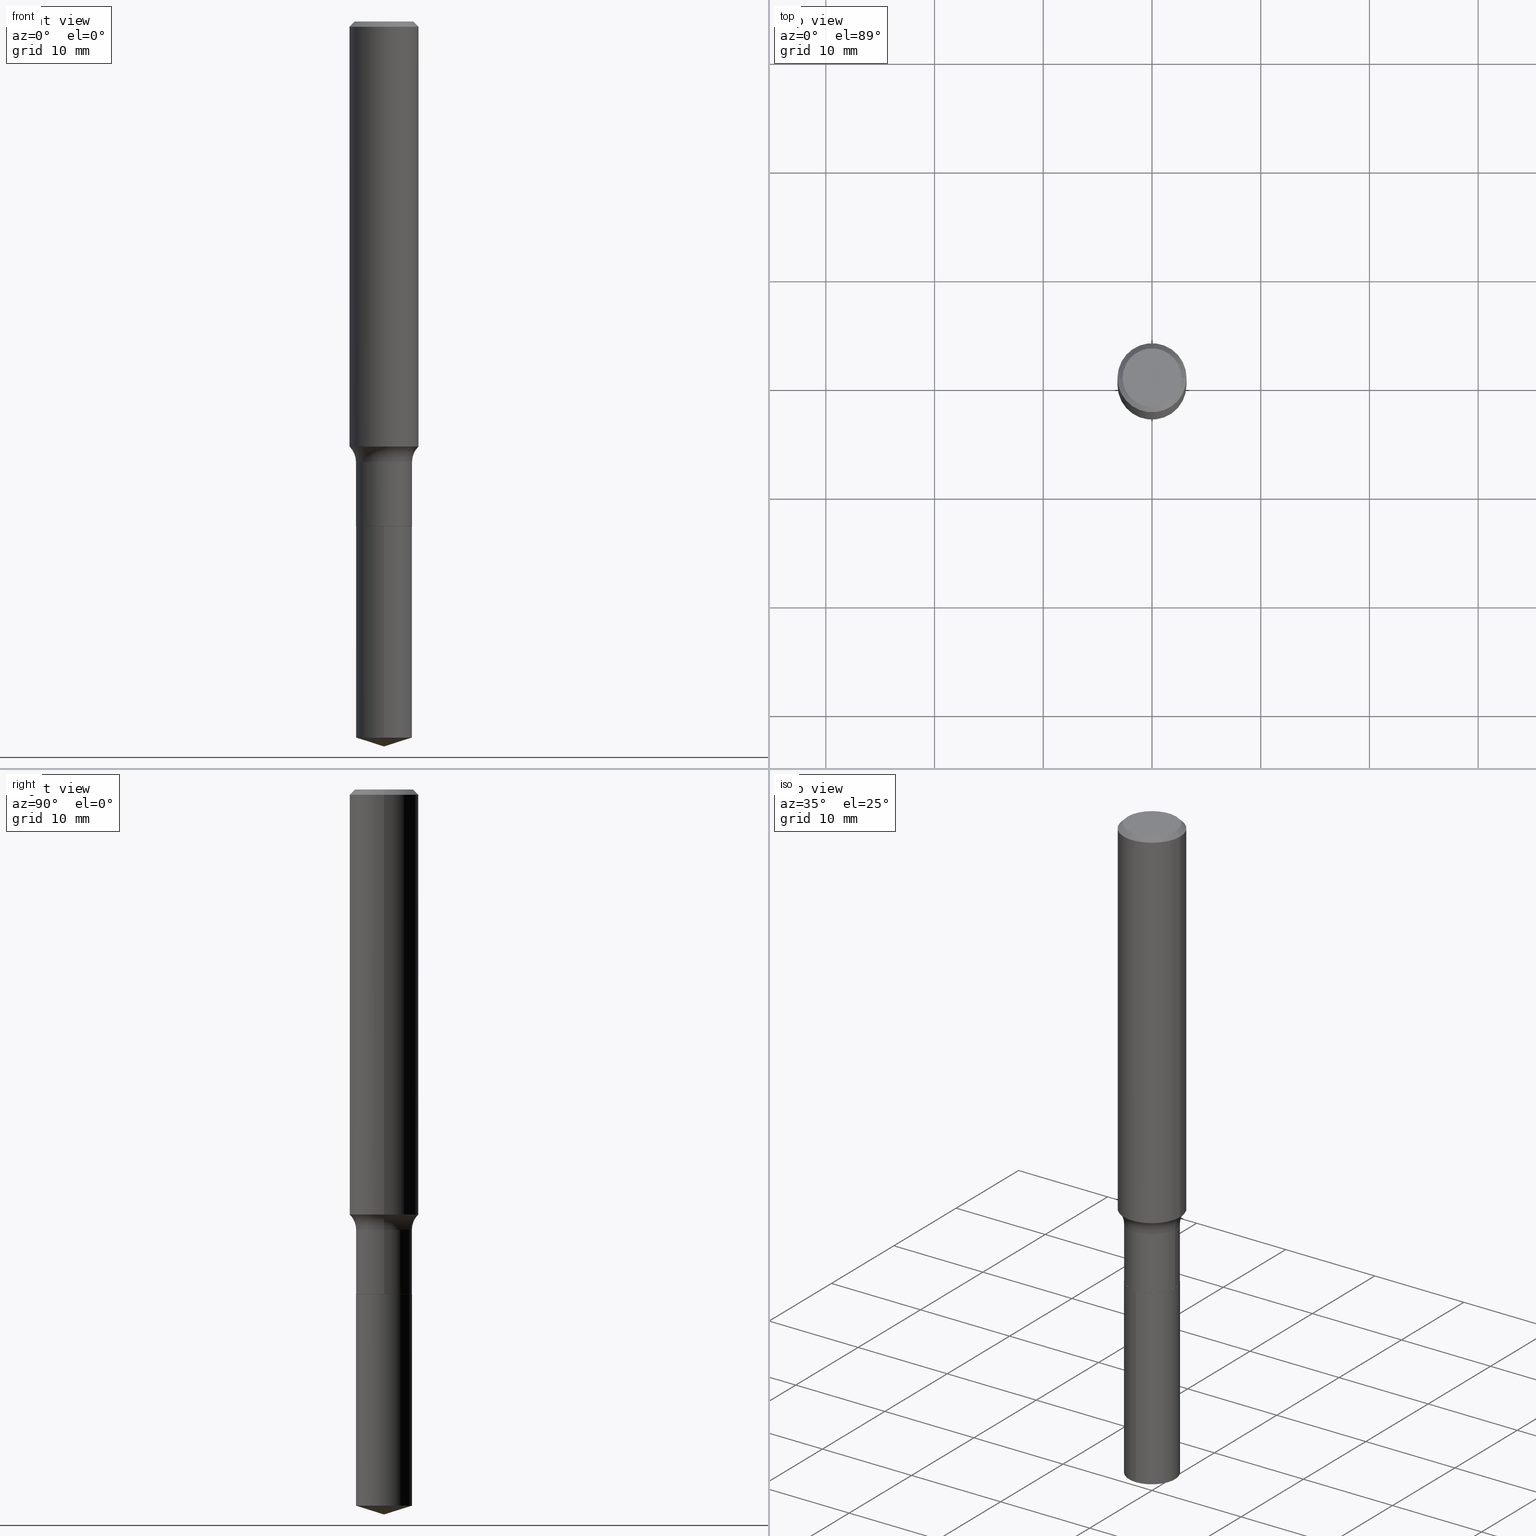
[diagram: canonical four-view strip — front | top / right | iso, engineering-drawing reading convention]
A machine part, canonical four-view strip (front | top / right | iso — engineering-drawing reading convention). The complete STEP part file that produces these views, byte-faithful:
ISO-10303-21;
HEADER;
FILE_DESCRIPTION (( 'STEP AP203' ),
    '1' );
FILE_NAME ('51339.STEP',
    '2024-04-19T12:49:15',
    ( '' ),
    ( '' ),
    'SwSTEP 2.0',
    'SolidWorks 2023',
    '' );
FILE_SCHEMA (( 'CONFIG_CONTROL_DESIGN' ));
ENDSEC;

DATA;
#1 = DIRECTION ( 'NONE',  ( 1.000000000000000000, -6.982962677686266711E-15, 4.876176775795935232E-29 ) ) ;
#2 = MANIFOLD_SOLID_BREP ( 'Body-Move/Copy2[1]', #132 ) ;
#3 = ADVANCED_FACE ( 'NONE', ( #295 ), #405, .F. ) ;
#4 = DATE_AND_TIME ( #349, #327 ) ;
#5 = AXIS2_PLACEMENT_3D ( 'NONE', #257, #165, #61 ) ;
#6 = CARTESIAN_POINT ( 'NONE',  ( 4.470561524587048986E-29, -6.382777035539155361E-15, -1.828100000000000058 ) ) ;
#7 = ORIENTED_EDGE ( 'NONE', *, *, #455, .T. ) ;
#8 = DIRECTION ( 'NONE',  ( 1.000000000000000000, -6.982962677686267499E-15, 0.000000000000000000 ) ) ;
#9 = CC_DESIGN_PERSON_AND_ORGANIZATION_ASSIGNMENT ( #79, #40, ( #125 ) ) ;
#10 = ORIENTED_EDGE ( 'NONE', *, *, #354, .T. ) ;
#11 = DIRECTION ( 'NONE',  ( -2.438088387897960049E-29, 3.491481338843145188E-15, 1.000000000000000000 ) ) ;
#12 = DIRECTION ( 'NONE',  ( -2.445400954091685323E-29, 3.491578506902869077E-15, 1.000000000000000000 ) ) ;
#13 = AXIS2_PLACEMENT_3D ( 'NONE', #477, #196, #19 ) ;
#14 = EDGE_LOOP ( 'NONE', ( #100, #353, #348 ) ) ;
#15 = DIRECTION ( 'NONE',  ( -2.445468806185136597E-29, 3.491481338843145583E-15, 1.000000000000000000 ) ) ;
#16 = DIRECTION ( 'NONE',  ( 1.000000000000000000, -6.982962677686270655E-15, 0.000000000000000000 ) ) ;
#17 = AXIS2_PLACEMENT_3D ( 'NONE', #260, #127, #56 ) ;
#18 = VERTEX_POINT ( 'NONE', #126 ) ;
#19 = DIRECTION ( 'NONE',  ( 1.000000000000000000, -6.982962677686266711E-15, 4.876176775795935793E-29 ) ) ;
#20 = DIRECTION ( 'NONE',  ( -0.7071067811866199593, 7.493145998870616062E-15, 0.7071067811864750752 ) ) ;
#21 = EDGE_CURVE ( 'NONE', #18, #294, #60, .T. ) ;
#22 = ORIENTED_EDGE ( 'NONE', *, *, #71, .T. ) ;
#23 = DIRECTION ( 'NONE',  ( -2.445468806185136597E-29, 3.491481338843145583E-15, 1.000000000000000000 ) ) ;
#24 = CARTESIAN_POINT ( 'NONE',  ( -0.1015500000000000014, -5.252542996663183258E-15, -1.827600000000000113 ) ) ;
#25 = DIRECTION ( 'NONE',  ( -2.445468806185136597E-29, 3.491481338843145583E-15, 1.000000000000000000 ) ) ;
#26 = ADVANCED_FACE ( 'NONE', ( #200 ), #211, .T. ) ;
#27 = ADVANCED_BREP_SHAPE_REPRESENTATION ( '51339', ( #2, #330, #437 ), #163 ) ;
#28 = FACE_OUTER_BOUND ( 'NONE', #237, .T. ) ;
#29 = CC_DESIGN_DATE_AND_TIME_ASSIGNMENT ( #411, #377, ( #143 ) ) ;
#30 = AXIS2_PLACEMENT_3D ( 'NONE', #305, #112, #413 ) ;
#31 = EDGE_CURVE ( 'NONE', #256, #162, #110, .T. ) ;
#32 = ORIENTED_EDGE ( 'NONE', *, *, #293, .T. ) ;
#33 = CARTESIAN_POINT ( 'NONE',  ( -0.1795499999999999596, -4.291387512728136757E-15, -1.594500000000000250 ) ) ;
#34 = PERSON_AND_ORGANIZATION ( #336, #149 ) ;
#35 = ADVANCED_FACE ( 'NONE', ( #366 ), #130, .T. ) ;
#36 = APPROVAL ( #77, 'UNSPECIFIED' ) ;
#37 = CALENDAR_DATE ( 2024, 19, 4 ) ;
#38 = PERSON_AND_ORGANIZATION ( #336, #149 ) ;
#39 = PRODUCT_DEFINITION_FORMATION_WITH_SPECIFIED_SOURCE ( 'ANY', '', #208, .NOT_KNOWN. ) ;
#40 = PERSON_AND_ORGANIZATION_ROLE ( 'creator' ) ;
#41 = CARTESIAN_POINT ( 'NONE',  ( 0.1010500000000000009, -7.088405414119352347E-15, -1.828100000000000058 ) ) ;
#42 = CIRCLE ( 'NONE', #106, 0.1015500000000000014 ) ;
#43 = ORIENTED_EDGE ( 'NONE', *, *, #175, .F. ) ;
#44 = DATE_AND_TIME ( #488, #460 ) ;
#45 = CIRCLE ( 'NONE', #30, 0.1010500000000000009 ) ;
#46 = EDGE_LOOP ( 'NONE', ( #123, #344, #52, #192 ) ) ;
#47 = FACE_OUTER_BOUND ( 'NONE', #113, .T. ) ;
#48 = FACE_OUTER_BOUND ( 'NONE', #57, .T. ) ;
#49 = EDGE_CURVE ( 'NONE', #162, #256, #483, .T. ) ;
#50 = VERTEX_POINT ( 'NONE', #207 ) ;
#51 = DIRECTION ( 'NONE',  ( -6.982962677686266711E-15, -1.000000000000000000, 5.380301316916323039E-15 ) ) ;
#52 = ORIENTED_EDGE ( 'NONE', *, *, #360, .F. ) ;
#53 = CONICAL_SURFACE ( 'NONE', #262, 0.1010500000000000009, 0.7853981633975507526 ) ;
#54 = EDGE_CURVE ( 'NONE', #50, #472, #190, .T. ) ;
#55 = DIRECTION ( 'NONE',  ( 1.000000000000000000, -6.982962677686264344E-15, 0.000000000000000000 ) ) ;
#56 = DIRECTION ( 'NONE',  ( 1.000000000000000000, -6.982962677686265133E-15, 4.883557194083112340E-29 ) ) ;
#57 = EDGE_LOOP ( 'NONE', ( #253, #465, #309, #328 ) ) ;
#58 = DIRECTION ( 'NONE',  ( -2.445468806185136597E-29, 3.491481338843145583E-15, 1.000000000000000000 ) ) ;
#59 = PLANE ( 'NONE',  #357 ) ;
#60 = LINE ( 'NONE', #389, #178 ) ;
#61 = DIRECTION ( 'NONE',  ( 1.000000000000000000, -6.982962677686269077E-15, 0.000000000000000000 ) ) ;
#62 = CLOSED_SHELL ( 'NONE', ( #220, #370, #490, #3, #380, #26, #334, #35, #442, #255, #141, #258 ) ) ;
#63 = FACE_OUTER_BOUND ( 'NONE', #379, .T. ) ;
#64 = APPROVAL ( #278, 'UNSPECIFIED' ) ;
#65 = AXIS2_PLACEMENT_3D ( 'NONE', #33, #451, #179 ) ;
#66 = CARTESIAN_POINT ( 'NONE',  ( -0.1250000000000002220, -4.484331131856369405E-15, -1.538747892416519214 ) ) ;
#67 = APPROVAL_ROLE ( '' ) ;
#68 = AXIS2_PLACEMENT_3D ( 'NONE', #431, #11, #159 ) ;
#69 = CONICAL_SURFACE ( 'NONE', #303, 124.8659371009138965, 1.265363707695889017 ) ;
#70 = ORIENTED_EDGE ( 'NONE', *, *, #31, .F. ) ;
#71 = EDGE_CURVE ( 'NONE', #162, #75, #94, .T. ) ;
#72 = CARTESIAN_POINT ( 'NONE',  ( -7.091198599189767857E-16, -0.1015500000000090497, -2.592981407989338738 ) ) ;
#73 = ORIENTED_EDGE ( 'NONE', *, *, #402, .T. ) ;
#74 = COORDINATED_UNIVERSAL_TIME_OFFSET ( 5, 0, .BEHIND. ) ;
#75 = VERTEX_POINT ( 'NONE', #90 ) ;
#76 = VECTOR ( 'NONE', #352, 39.37007874015748143 ) ;
#77 = APPROVAL_STATUS ( 'not_yet_approved' ) ;
#78 =( LENGTH_UNIT ( ) NAMED_UNIT ( * ) SI_UNIT ( $, .METRE. ) );
#79 = PERSON_AND_ORGANIZATION ( #336, #149 ) ;
#80 = DIRECTION ( 'NONE',  ( -2.445400954091685323E-29, 3.491578506902869077E-15, 1.000000000000000000 ) ) ;
#81 = CC_DESIGN_APPROVAL ( #64, ( #39 ) ) ;
#82 = ORIENTED_EDGE ( 'NONE', *, *, #269, .T. ) ;
#83 = LINE ( 'NONE', #239, #173 ) ;
#84 = CC_DESIGN_APPROVAL ( #226, ( #125 ) ) ;
#85 = ORIENTED_EDGE ( 'NONE', *, *, #138, .T. ) ;
#86 = COORDINATED_UNIVERSAL_TIME_OFFSET ( 5, 0, .BEHIND. ) ;
#87 = CARTESIAN_POINT ( 'NONE',  ( 0.1015499999999999736, -6.276286854704436544E-15, -1.594500000000000250 ) ) ;
#88 = FACE_OUTER_BOUND ( 'NONE', #14, .T. ) ;
#89 = EDGE_LOOP ( 'NONE', ( #148, #135 ) ) ;
#90 = CARTESIAN_POINT ( 'NONE',  ( 0.1250000000000000000, -9.383356098140928781E-16, -0.01875000000000013115 ) ) ;
#91 = CARTESIAN_POINT ( 'NONE',  ( 4.470561524587048986E-29, -6.382777035539155361E-15, -1.828100000000000058 ) ) ;
#92 = ORIENTED_EDGE ( 'NONE', *, *, #290, .F. ) ;
#93 = EDGE_CURVE ( 'NONE', #120, #427, #316, .T. ) ;
#94 = LINE ( 'NONE', #463, #489 ) ;
#95 = CARTESIAN_POINT ( 'NONE',  ( 0.1795499999999999596, -6.820957943563966168E-15, -1.594500000000000250 ) ) ;
#96 = ORIENTED_EDGE ( 'NONE', *, *, #152, .T. ) ;
#97 = CIRCLE ( 'NONE', #468, 0.07799999999999999989 ) ;
#98 = DIRECTION ( 'NONE',  ( -2.445400954091685323E-29, 3.491578506902869077E-15, 1.000000000000000000 ) ) ;
#99 = DIRECTION ( 'NONE',  ( -2.445468806185136877E-29, 3.491481338843145188E-15, 1.000000000000000000 ) ) ;
#100 = ORIENTED_EDGE ( 'NONE', *, *, #21, .F. ) ;
#101 = CARTESIAN_POINT ( 'NONE',  ( 0.000000000000000000, 0.000000000000000000, 0.000000000000000000 ) ) ;
#102 = DIRECTION ( 'NONE',  ( -1.000000000000000000, 6.982962677686266711E-15, 0.000000000000000000 ) ) ;
#103 = DIRECTION ( 'NONE',  ( 1.000000000000000000, -6.982962677686266711E-15, 0.000000000000000000 ) ) ;
#104 = AXIS2_PLACEMENT_3D ( 'NONE', #122, #308, #201 ) ;
#105 = EDGE_LOOP ( 'NONE', ( #158, #422, #469, #398 ) ) ;
#106 = AXIS2_PLACEMENT_3D ( 'NONE', #91, #193, #491 ) ;
#107 = AXIS2_PLACEMENT_3D ( 'NONE', #101, #399, #482 ) ;
#108 = LINE ( 'NONE', #153, #319 ) ;
#109 = ORIENTED_EDGE ( 'NONE', *, *, #404, .F. ) ;
#110 = CIRCLE ( 'NONE', #337, 0.1062499999999999972 ) ;
#111 = AXIS2_PLACEMENT_3D ( 'NONE', #212, #292, #365 ) ;
#112 = DIRECTION ( 'NONE',  ( -2.445468806185136597E-29, 3.491481338843145583E-15, 1.000000000000000000 ) ) ;
#113 = EDGE_LOOP ( 'NONE', ( #109, #92 ) ) ;
#114 = CYLINDRICAL_SURFACE ( 'NONE', #400, 0.1250000000000001110 ) ;
#115 = LINE ( 'NONE', #387, #445 ) ;
#116 = ORIENTED_EDGE ( 'NONE', *, *, #93, .F. ) ;
#117 = PERSON_AND_ORGANIZATION ( #336, #149 ) ;
#118 = VERTEX_POINT ( 'NONE', #87 ) ;
#119 = CARTESIAN_POINT ( 'NONE',  ( 4.470561524587048986E-29, -6.382777035539155361E-15, -1.828100000000000058 ) ) ;
#120 = VERTEX_POINT ( 'NONE', #386 ) ;
#121 = CARTESIAN_POINT ( 'NONE',  ( -8.985632656894315831E-28, 1.282985047965174103E-13, 36.74507874015748143 ) ) ;
#122 = CARTESIAN_POINT ( 'NONE',  ( -7.955031918821649840E-47, 1.135767727816383790E-32, 3.252968060235157457E-18 ) ) ;
#123 = ORIENTED_EDGE ( 'NONE', *, *, #54, .T. ) ;
#124 = EDGE_CURVE ( 'NONE', #276, #294, #340, .T. ) ;
#125 = PRODUCT_DEFINITION ( 'UNKNOWN', '', #39, #273 ) ;
#126 = CARTESIAN_POINT ( 'NONE',  ( 6.419177504490673517E-29, -9.165393580620030242E-15, -2.625000000000000000 ) ) ;
#127 = DIRECTION ( 'NONE',  ( -2.445468806185136597E-29, 3.491481338843145583E-15, 1.000000000000000000 ) ) ;
#128 = LOCAL_TIME ( 8, 49, 15.00000000000000000, #86 ) ;
#129 = ORIENTED_EDGE ( 'NONE', *, *, #188, .F. ) ;
#130 = CYLINDRICAL_SURFACE ( 'NONE', #392, 0.1250000000000001110 ) ;
#131 = DIRECTION ( 'NONE',  ( -1.000000000000000000, 6.982962677686266711E-15, 0.000000000000000000 ) ) ;
#132 = CLOSED_SHELL ( 'NONE', ( #412, #142, #283, #323, #359 ) ) ;
#133 = ORIENTED_EDGE ( 'NONE', *, *, #480, .F. ) ;
#134 = CONICAL_SURFACE ( 'NONE', #266, 124.8659371009138965, 1.265363707695889017 ) ;
#135 = ORIENTED_EDGE ( 'NONE', *, *, #49, .T. ) ;
#136 = CARTESIAN_POINT ( 'NONE',  ( 7.215561481644451532E-16, 0.1015499999999909392, -2.592981407989339626 ) ) ;
#137 = CARTESIAN_POINT ( 'NONE',  ( 4.470561524587048986E-29, -6.382777035539155361E-15, -1.828100000000000058 ) ) ;
#138 = EDGE_CURVE ( 'NONE', #243, #118, #373, .T. ) ;
#139 = CARTESIAN_POINT ( 'NONE',  ( 0.1015499999999999875, -7.091198599190402890E-16, 4.951757515820772372E-30 ) ) ;
#140 = CIRCLE ( 'NONE', #306, 0.1015499999999999736 ) ;
#141 = ADVANCED_FACE ( 'NONE', ( #47 ), #351, .F. ) ;
#142 = ADVANCED_FACE ( 'NONE', ( #317 ), #134, .T. ) ;
#143 = SECURITY_CLASSIFICATION ( '', '', #244 ) ;
#144 = DIRECTION ( 'NONE',  ( -2.445468806185136877E-29, 3.491481338843145188E-15, 1.000000000000000000 ) ) ;
#145 = CARTESIAN_POINT ( 'NONE',  ( 7.215561481644451532E-16, 0.1015499999999936176, -1.828100000000000280 ) ) ;
#146 = TOROIDAL_SURFACE ( 'NONE', #17, 0.1795499999999999596, 0.07799999999999999989 ) ;
#147 = DIRECTION ( 'NONE',  ( -6.982962677686266711E-15, -1.000000000000000000, 3.500519750498737170E-15 ) ) ;
#148 = ORIENTED_EDGE ( 'NONE', *, *, #31, .T. ) ;
#149 = ORGANIZATION ( 'UNSPECIFIED', 'UNSPECIFIED', '' ) ;
#150 = APPROVAL_DATE_TIME ( #4, #36 ) ;
#151 = AXIS2_PLACEMENT_3D ( 'NONE', #168, #325, #291 ) ;
#152 = EDGE_CURVE ( 'NONE', #276, #204, #321, .T. ) ;
#153 = CARTESIAN_POINT ( 'NONE',  ( -0.1250000000000000000, 8.074050596074738982E-16, -0.01875000000000013115 ) ) ;
#154 = VERTEX_POINT ( 'NONE', #381 ) ;
#155 =( NAMED_UNIT ( * ) PLANE_ANGLE_UNIT ( ) SI_UNIT ( $, .RADIAN. ) );
#156 = DIRECTION ( 'NONE',  ( -2.445468806185136597E-29, 3.491481338843145583E-15, 1.000000000000000000 ) ) ;
#157 = DIRECTION ( 'NONE',  ( -0.7071067811865450192, 2.468850131082230634E-15, -0.7071067811865500152 ) ) ;
#158 = ORIENTED_EDGE ( 'NONE', *, *, #93, .T. ) ;
#159 = DIRECTION ( 'NONE',  ( 1.000000000000000000, -6.982962677686265922E-15, 4.876176775795935793E-29 ) ) ;
#160 = DIRECTION ( 'NONE',  ( -2.445468806185136597E-29, 3.491481338843145583E-15, 1.000000000000000000 ) ) ;
#161 = AXIS2_PLACEMENT_3D ( 'NONE', #259, #58, #361 ) ;
#162 = VERTEX_POINT ( 'NONE', #459 ) ;
#163 =( GEOMETRIC_REPRESENTATION_CONTEXT ( 3 ) GLOBAL_UNCERTAINTY_ASSIGNED_CONTEXT ( ( #454 ) ) GLOBAL_UNIT_ASSIGNED_CONTEXT ( ( #350, #155, #419 ) ) REPRESENTATION_CONTEXT ( 'NONE', 'WORKASPACE' ) );
#164 = CARTESIAN_POINT ( 'NONE',  ( 3.762959971487720455E-29, -5.372509551556497004E-15, -1.538747892416519214 ) ) ;
#165 = DIRECTION ( 'NONE',  ( -2.445468806185136597E-29, 3.491481338843145583E-15, 1.000000000000000000 ) ) ;
#166 = ORIENTED_EDGE ( 'NONE', *, *, #138, .F. ) ;
#167 = APPROVAL_PERSON_ORGANIZATION ( #444, #226, #67 ) ;
#168 = CARTESIAN_POINT ( 'NONE',  ( 3.899300011462200653E-29, -5.567166994785396551E-15, -1.594500000000000250 ) ) ;
#169 = DIRECTION ( 'NONE',  ( -2.445468806185136877E-29, 3.491481338843145188E-15, 1.000000000000000000 ) ) ;
#170 = EDGE_LOOP ( 'NONE', ( #492, #10, #210, #395 ) ) ;
#171 = ORIENTED_EDGE ( 'NONE', *, *, #231, .T. ) ;
#172 = DIRECTION ( 'NONE',  ( -2.445400954091685323E-29, 3.491578506902869077E-15, 1.000000000000000000 ) ) ;
#173 = VECTOR ( 'NONE', #343, 39.37007874015748854 ) ;
#174 = CARTESIAN_POINT ( 'NONE',  ( 4.470561524587048986E-29, -6.382777035539155361E-15, -1.828100000000000058 ) ) ;
#175 = EDGE_CURVE ( 'NONE', #204, #475, #42, .T. ) ;
#176 = CYLINDRICAL_SURFACE ( 'NONE', #229, 0.1015500000000000014 ) ;
#177 = EDGE_CURVE ( 'NONE', #18, #276, #83, .T. ) ;
#178 = VECTOR ( 'NONE', #466, 39.37007874015748854 ) ;
#179 = DIRECTION ( 'NONE',  ( -1.000000000000000000, 7.105427357600997914E-15, 0.000000000000000000 ) ) ;
#180 = CONICAL_SURFACE ( 'NONE', #183, 0.1010500000000000009, 0.7853981633975507526 ) ;
#181 = COORDINATED_UNIVERSAL_TIME_OFFSET ( 5, 0, .BEHIND. ) ;
#182 = CARTESIAN_POINT ( 'NONE',  ( 3.762959971487720455E-29, -5.372509551556497004E-15, -1.538747892416519214 ) ) ;
#183 = AXIS2_PLACEMENT_3D ( 'NONE', #407, #426, #464 ) ;
#184 = COORDINATED_UNIVERSAL_TIME_OFFSET ( 5, 0, .BEHIND. ) ;
#185 = LOCAL_TIME ( 8, 49, 15.00000000000000000, #415 ) ;
#186 = EDGE_CURVE ( 'NONE', #294, #475, #115, .T. ) ;
#187 = PERSON_AND_ORGANIZATION_ROLE ( 'design_supplier' ) ;
#188 = EDGE_CURVE ( 'NONE', #427, #154, #318, .T. ) ;
#189 = DIRECTION ( 'NONE',  ( -2.445468806185136597E-29, 3.491481338843145583E-15, 1.000000000000000000 ) ) ;
#190 = CIRCLE ( 'NONE', #476, 0.1015500000000000014 ) ;
#191 = DIRECTION ( 'NONE',  ( 1.000000000000000000, -6.982962677686269077E-15, 0.000000000000000000 ) ) ;
#192 = ORIENTED_EDGE ( 'NONE', *, *, #402, .F. ) ;
#193 = DIRECTION ( 'NONE',  ( -2.445400954091685323E-29, 3.491578506902869077E-15, 1.000000000000000000 ) ) ;
#194 = ORIENTED_EDGE ( 'NONE', *, *, #450, .F. ) ;
#195 = APPROVAL_ROLE ( '' ) ;
#196 = DIRECTION ( 'NONE',  ( -2.445468806185136597E-29, 3.491481338843145583E-15, 1.000000000000000000 ) ) ;
#197 = LINE ( 'NONE', #374, #76 ) ;
#198 = CC_DESIGN_PERSON_AND_ORGANIZATION_ASSIGNMENT ( #274, #409, ( #143 ) ) ;
#199 = ORIENTED_EDGE ( 'NONE', *, *, #152, .F. ) ;
#200 = FACE_OUTER_BOUND ( 'NONE', #396, .T. ) ;
#201 = DIRECTION ( 'NONE',  ( -1.000000000000000000, 6.982962677686265922E-15, -4.876176775795935793E-29 ) ) ;
#202 = AXIS2_PLACEMENT_3D ( 'NONE', #164, #23, #246 ) ;
#203 = EDGE_CURVE ( 'NONE', #75, #154, #205, .T. ) ;
#204 = VERTEX_POINT ( 'NONE', #338 ) ;
#205 = CIRCLE ( 'NONE', #241, 0.1250000000000000000 ) ;
#206 = VECTOR ( 'NONE', #169, 39.37007874015748143 ) ;
#207 = CARTESIAN_POINT ( 'NONE',  ( 0.1015500000000000014, -7.090151154788773851E-15, -1.827600000000000113 ) ) ;
#208 = PRODUCT ( '51339', '51339', '', ( #228 ) ) ;
#209 = DIRECTION ( 'NONE',  ( -6.982962677686266711E-15, -1.000000000000000000, 5.380301316916323039E-15 ) ) ;
#210 = ORIENTED_EDGE ( 'NONE', *, *, #54, .F. ) ;
#211 = CYLINDRICAL_SURFACE ( 'NONE', #13, 0.1015499999999999875 ) ;
#212 = CARTESIAN_POINT ( 'NONE',  ( 4.585254011597162998E-31, -6.546527510330944066E-17, -0.01875000000000013115 ) ) ;
#213 = ORIENTED_EDGE ( 'NONE', *, *, #219, .T. ) ;
#214 = FACE_OUTER_BOUND ( 'NONE', #289, .T. ) ;
#215 = AXIS2_PLACEMENT_3D ( 'NONE', #296, #263, #102 ) ;
#216 = CARTESIAN_POINT ( 'NONE',  ( -0.1010500000000000009, -5.662124373879462324E-15, -1.828100000000000058 ) ) ;
#217 = APPLICATION_PROTOCOL_DEFINITION ( 'international standard', 'config_control_design', 1994, #372 ) ;
#218 = CARTESIAN_POINT ( 'NONE',  ( 6.341003249451169615E-29, -9.053420520004334990E-15, -2.592981407989339182 ) ) ;
#219 = EDGE_CURVE ( 'NONE', #427, #120, #368, .T. ) ;
#220 = ADVANCED_FACE ( 'NONE', ( #236 ), #53, .T. ) ;
#221 = CARTESIAN_POINT ( 'NONE',  ( -0.1015499999999999875, 7.215561481643816499E-16, -4.995178584153856401E-30 ) ) ;
#222 = AXIS2_PLACEMENT_3D ( 'NONE', #428, #251, #51 ) ;
#223 = AXIS2_PLACEMENT_3D ( 'NONE', #182, #302, #8 ) ;
#224 = LINE ( 'NONE', #221, #333 ) ;
#225 = CIRCLE ( 'NONE', #447, 0.1015500000000000014 ) ;
#226 = APPROVAL ( #265, 'UNSPECIFIED' ) ;
#227 = EDGE_LOOP ( 'NONE', ( #339, #70, #171, #417 ) ) ;
#228 = MECHANICAL_CONTEXT ( 'NONE', #484, 'mechanical' ) ;
#229 = AXIS2_PLACEMENT_3D ( 'NONE', #471, #172, #261 ) ;
#230 = SHAPE_DEFINITION_REPRESENTATION ( #435, #27 ) ;
#231 = EDGE_CURVE ( 'NONE', #256, #154, #108, .T. ) ;
#232 = EDGE_CURVE ( 'NONE', #248, #50, #197, .T. ) ;
#233 = DATE_TIME_ROLE ( 'creation_date' ) ;
#234 = FACE_OUTER_BOUND ( 'NONE', #105, .T. ) ;
#235 = APPROVAL_PERSON_ORGANIZATION ( #238, #36, #195 ) ;
#236 = FACE_OUTER_BOUND ( 'NONE', #170, .T. ) ;
#237 = EDGE_LOOP ( 'NONE', ( #458, #32, #96, #434 ) ) ;
#238 = PERSON_AND_ORGANIZATION ( #336, #149 ) ;
#239 = CARTESIAN_POINT ( 'NONE',  ( 6.419177504490673517E-29, -9.165393580620030242E-15, -2.625000000000000000 ) ) ;
#240 = VECTOR ( 'NONE', #144, 39.37007874015748143 ) ;
#241 = AXIS2_PLACEMENT_3D ( 'NONE', #275, #160, #467 ) ;
#242 = AXIS2_PLACEMENT_3D ( 'NONE', #137, #367, #299 ) ;
#243 = VERTEX_POINT ( 'NONE', #285 ) ;
#244 = SECURITY_CLASSIFICATION_LEVEL ( 'unclassified' ) ;
#245 = CC_DESIGN_DATE_AND_TIME_ASSIGNMENT ( #310, #233, ( #125 ) ) ;
#246 = DIRECTION ( 'NONE',  ( 1.000000000000000000, -6.982962677686267499E-15, 0.000000000000000000 ) ) ;
#247 = ORIENTED_EDGE ( 'NONE', *, *, #49, .F. ) ;
#248 = VERTEX_POINT ( 'NONE', #41 ) ;
#249 = DIRECTION ( 'NONE',  ( -6.982962677686266711E-15, -1.000000000000000000, 2.690150658458161520E-15 ) ) ;
#250 = ORIENTED_EDGE ( 'NONE', *, *, #177, .F. ) ;
#251 = DIRECTION ( 'NONE',  ( -2.445400954091685323E-29, 3.491578506902869077E-15, 1.000000000000000000 ) ) ;
#252 = DIRECTION ( 'NONE',  ( 6.982962677686265922E-15, 1.000000000000000000, -3.491578506902869077E-15 ) ) ;
#253 = ORIENTED_EDGE ( 'NONE', *, *, #354, .F. ) ;
#254 = AXIS2_PLACEMENT_3D ( 'NONE', #119, #280, #249 ) ;
#255 = ADVANCED_FACE ( 'NONE', ( #457 ), #267, .F. ) ;
#256 = VERTEX_POINT ( 'NONE', #313 ) ;
#257 = CARTESIAN_POINT ( 'NONE',  ( 4.470561524587048986E-29, -6.382777035539155361E-15, -1.828100000000000058 ) ) ;
#258 = ADVANCED_FACE ( 'NONE', ( #48 ), #180, .T. ) ;
#259 = CARTESIAN_POINT ( 'NONE',  ( 3.899300011462200653E-29, -5.567166994785396551E-15, -1.594500000000000250 ) ) ;
#260 = CARTESIAN_POINT ( 'NONE',  ( 3.899300011462200653E-29, -5.567166994785396551E-15, -1.594500000000000250 ) ) ;
#261 = DIRECTION ( 'NONE',  ( -6.982962677686266711E-15, -1.000000000000000000, 2.690150658458161520E-15 ) ) ;
#262 = AXIS2_PLACEMENT_3D ( 'NONE', #6, #446, #191 ) ;
#263 = DIRECTION ( 'NONE',  ( 2.445468806185136597E-29, -3.491481338843145583E-15, -1.000000000000000000 ) ) ;
#264 = APPROVAL_PERSON_ORGANIZATION ( #117, #64, #452 ) ;
#265 = APPROVAL_STATUS ( 'not_yet_approved' ) ;
#266 = AXIS2_PLACEMENT_3D ( 'NONE', #121, #98, #355 ) ;
#267 = PLANE ( 'NONE',  #104 ) ;
#268 = PERSON_AND_ORGANIZATION_ROLE ( 'design_owner' ) ;
#269 = EDGE_CURVE ( 'NONE', #475, #204, #456, .T. ) ;
#270 = AXIS2_PLACEMENT_3D ( 'NONE', #312, #473, #420 ) ;
#271 = ORIENTED_EDGE ( 'NONE', *, *, #439, .T. ) ;
#272 = VECTOR ( 'NONE', #99, 39.37007874015748143 ) ;
#273 = DESIGN_CONTEXT ( 'detailed design', #372, 'design' ) ;
#274 = PERSON_AND_ORGANIZATION ( #336, #149 ) ;
#275 = CARTESIAN_POINT ( 'NONE',  ( 4.585254011597162998E-31, -6.546527510330944066E-17, -0.01875000000000013115 ) ) ;
#276 = VERTEX_POINT ( 'NONE', #72 ) ;
#277 = EDGE_LOOP ( 'NONE', ( #133, #116, #307, #363 ) ) ;
#278 = APPROVAL_STATUS ( 'not_yet_approved' ) ;
#279 = DIRECTION ( 'NONE',  ( 0.7071067811865450192, -7.319954787623246579E-15, -0.7071067811865500152 ) ) ;
#280 = DIRECTION ( 'NONE',  ( -2.445400954091685323E-29, 3.491578506902869077E-15, 1.000000000000000000 ) ) ;
#281 = AXIS2_PLACEMENT_3D ( 'NONE', #394, #326, #131 ) ;
#282 = ORIENTED_EDGE ( 'NONE', *, *, #203, .T. ) ;
#283 = ADVANCED_FACE ( 'NONE', ( #88 ), #69, .T. ) ;
#284 = DIRECTION ( 'NONE',  ( 1.000000000000000000, -6.982962677686266711E-15, 4.875930095424100059E-29 ) ) ;
#285 = CARTESIAN_POINT ( 'NONE',  ( -0.1015499999999999736, -5.252542996663183258E-15, -1.594500000000000250 ) ) ;
#286 = EDGE_LOOP ( 'NONE', ( #129, #213, #7, #194 ) ) ;
#287 = CARTESIAN_POINT ( 'NONE',  ( -1.591006383764329968E-46, 2.271535455632767580E-32, 6.505936120470314915E-18 ) ) ;
#288 = LINE ( 'NONE', #139, #206 ) ;
#289 = EDGE_LOOP ( 'NONE', ( #358, #448, #43, #199 ) ) ;
#290 = EDGE_CURVE ( 'NONE', #375, #248, #45, .T. ) ;
#291 = DIRECTION ( 'NONE',  ( 1.000000000000000000, -6.982962677686266711E-15, 0.000000000000000000 ) ) ;
#292 = DIRECTION ( 'NONE',  ( -2.445468806185136597E-29, 3.491481338843145583E-15, 1.000000000000000000 ) ) ;
#293 = EDGE_CURVE ( 'NONE', #294, #276, #443, .T. ) ;
#294 = VERTEX_POINT ( 'NONE', #136 ) ;
#295 = FACE_OUTER_BOUND ( 'NONE', #436, .T. ) ;
#296 = CARTESIAN_POINT ( 'NONE',  ( 4.585254011597162998E-31, -6.546527510330944066E-17, -0.01875000000000013115 ) ) ;
#297 = LINE ( 'NONE', #432, #272 ) ;
#298 = CC_DESIGN_PERSON_AND_ORGANIZATION_ASSIGNMENT ( #462, #187, ( #39 ) ) ;
#299 = DIRECTION ( 'NONE',  ( -6.982962677686266711E-15, -1.000000000000000000, 2.690150658458161520E-15 ) ) ;
#300 = VECTOR ( 'NONE', #20, 39.37007874015748143 ) ;
#301 = CC_DESIGN_PERSON_AND_ORGANIZATION_ASSIGNMENT ( #38, #268, ( #208 ) ) ;
#302 = DIRECTION ( 'NONE',  ( -2.445468806185136597E-29, 3.491481338843145583E-15, 1.000000000000000000 ) ) ;
#303 = AXIS2_PLACEMENT_3D ( 'NONE', #390, #356, #147 ) ;
#304 = CALENDAR_DATE ( 2024, 19, 4 ) ;
#305 = CARTESIAN_POINT ( 'NONE',  ( 4.470561524587048986E-29, -6.382777035539155361E-15, -1.828100000000000058 ) ) ;
#306 = AXIS2_PLACEMENT_3D ( 'NONE', #401, #478, #103 ) ;
#307 = ORIENTED_EDGE ( 'NONE', *, *, #371, .T. ) ;
#308 = DIRECTION ( 'NONE',  ( 2.438088387897960049E-29, -3.491481338843145188E-15, -1.000000000000000000 ) ) ;
#309 = ORIENTED_EDGE ( 'NONE', *, *, #232, .T. ) ;
#310 = DATE_AND_TIME ( #37, #403 ) ;
#311 = CARTESIAN_POINT ( 'NONE',  ( 0.000000000000000000, 0.000000000000000000, 0.000000000000000000 ) ) ;
#312 = CARTESIAN_POINT ( 'NONE',  ( -1.591006383764329968E-46, 2.271535455632767580E-32, 6.505936120470314915E-18 ) ) ;
#313 = CARTESIAN_POINT ( 'NONE',  ( -0.1062499999999999972, 7.746724220558198188E-16, 6.505936120465012444E-18 ) ) ;
#314 = ORIENTED_EDGE ( 'NONE', *, *, #480, .T. ) ;
#315 = APPLICATION_PROTOCOL_DEFINITION ( 'international standard', 'config_control_design', 1994, #484 ) ;
#316 = CIRCLE ( 'NONE', #202, 0.1250000000000001943 ) ;
#317 = FACE_OUTER_BOUND ( 'NONE', #388, .T. ) ;
#318 = LINE ( 'NONE', #347, #240 ) ;
#319 = VECTOR ( 'NONE', #157, 39.37007874015748143 ) ;
#320 = ORIENTED_EDGE ( 'NONE', *, *, #21, .T. ) ;
#321 = LINE ( 'NONE', #487, #342 ) ;
#322 = CARTESIAN_POINT ( 'NONE',  ( 4.469338790183956184E-29, -6.381031294869733858E-15, -1.827600000000000113 ) ) ;
#323 = ADVANCED_FACE ( 'NONE', ( #28 ), #176, .T. ) ;
#324 = ORIENTED_EDGE ( 'NONE', *, *, #479, .F. ) ;
#325 = DIRECTION ( 'NONE',  ( -2.445468806185136597E-29, 3.491481338843145583E-15, 1.000000000000000000 ) ) ;
#326 = DIRECTION ( 'NONE',  ( 2.445468806185136597E-29, -3.491481338843145583E-15, -1.000000000000000000 ) ) ;
#327 = LOCAL_TIME ( 8, 49, 15.00000000000000000, #184 ) ;
#328 = ORIENTED_EDGE ( 'NONE', *, *, #439, .F. ) ;
#329 = FACE_OUTER_BOUND ( 'NONE', #461, .T. ) ;
#330 = MANIFOLD_SOLID_BREP ( 'Body-Move/Copy2[2]', #62 ) ;
#331 = FACE_OUTER_BOUND ( 'NONE', #277, .T. ) ;
#332 = DIRECTION ( 'NONE',  ( -6.982962677686266711E-15, -1.000000000000000000, 3.491481338843145583E-15 ) ) ;
#333 = VECTOR ( 'NONE', #408, 39.37007874015748143 ) ;
#334 = ADVANCED_FACE ( 'NONE', ( #331 ), #146, .F. ) ;
#335 = CC_DESIGN_SECURITY_CLASSIFICATION ( #143, ( #39 ) ) ;
#336 = PERSON ( 'UNSPECIFIED', 'UNSPECIFIED', 'UNSPECIFIED', ('UNSPECIFIED'), ('UNSPECIFIED'), ('UNSPECIFIED') ) ;
#337 = AXIS2_PLACEMENT_3D ( 'NONE', #287, #15, #284 ) ;
#338 = CARTESIAN_POINT ( 'NONE',  ( -7.091198599189957184E-16, -0.1015500000000063990, -1.828099999999999836 ) ) ;
#339 = ORIENTED_EDGE ( 'NONE', *, *, #71, .F. ) ;
#340 = CIRCLE ( 'NONE', #222, 0.1015500000000000014 ) ;
#341 = PERSON_AND_ORGANIZATION_ROLE ( 'creator' ) ;
#342 = VECTOR ( 'NONE', #12, 39.37007874015748143 ) ;
#343 = DIRECTION ( 'NONE',  ( -6.659769872151625778E-15, -0.9537169507482258224, 0.3007057995042763388 ) ) ;
#344 = ORIENTED_EDGE ( 'NONE', *, *, #479, .T. ) ;
#345 = APPROVAL_DATE_TIME ( #418, #64 ) ;
#346 = DIRECTION ( 'NONE',  ( 1.000000000000000000, 0.000000000000000000, 0.000000000000000000 ) ) ;
#347 = CARTESIAN_POINT ( 'NONE',  ( -0.1250000000000001110, 8.881784197001260212E-16, -6.148668862818637832E-30 ) ) ;
#348 = ORIENTED_EDGE ( 'NONE', *, *, #293, .F. ) ;
#349 = CALENDAR_DATE ( 2024, 19, 4 ) ;
#350 =( CONVERSION_BASED_UNIT ( 'INCH', #385 ) LENGTH_UNIT ( ) NAMED_UNIT ( #378 ) );
#351 = PLANE ( 'NONE',  #68 ) ;
#352 = DIRECTION ( 'NONE',  ( 0.7071067811866199593, -2.468850131083015945E-15, 0.7071067811864750752 ) ) ;
#353 = ORIENTED_EDGE ( 'NONE', *, *, #177, .T. ) ;
#354 = EDGE_CURVE ( 'NONE', #375, #472, #441, .T. ) ;
#355 = DIRECTION ( 'NONE',  ( -6.982962677686266711E-15, -1.000000000000000000, 3.500519750498737170E-15 ) ) ;
#356 = DIRECTION ( 'NONE',  ( -2.445400954091685323E-29, 3.491578506902869077E-15, 1.000000000000000000 ) ) ;
#357 = AXIS2_PLACEMENT_3D ( 'NONE', #174, #440, #252 ) ;
#358 = ORIENTED_EDGE ( 'NONE', *, *, #124, .T. ) ;
#359 = ADVANCED_FACE ( 'NONE', ( #63 ), #59, .F. ) ;
#360 = EDGE_CURVE ( 'NONE', #118, #243, #140, .T. ) ;
#361 = DIRECTION ( 'NONE',  ( 1.000000000000000000, -6.982962677686265133E-15, 4.883557194083112340E-29 ) ) ;
#362 = CARTESIAN_POINT ( 'NONE',  ( -0.1010500000000000009, -5.664773601053573525E-15, -1.828100000000000058 ) ) ;
#363 = ORIENTED_EDGE ( 'NONE', *, *, #360, .T. ) ;
#364 = DIRECTION ( 'NONE',  ( 1.000000000000000000, -6.982962677686266711E-15, 4.876176775795935232E-29 ) ) ;
#365 = DIRECTION ( 'NONE',  ( 1.000000000000000000, -6.982962677686266711E-15, 0.000000000000000000 ) ) ;
#366 = FACE_OUTER_BOUND ( 'NONE', #286, .T. ) ;
#367 = DIRECTION ( 'NONE',  ( -2.445400954091685323E-29, 3.491578506902869077E-15, 1.000000000000000000 ) ) ;
#368 = CIRCLE ( 'NONE', #223, 0.1250000000000001943 ) ;
#369 = CYLINDRICAL_SURFACE ( 'NONE', #107, 0.1015499999999999875 ) ;
#370 = ADVANCED_FACE ( 'NONE', ( #329 ), #485, .T. ) ;
#371 = EDGE_CURVE ( 'NONE', #120, #118, #97, .T. ) ;
#372 = APPLICATION_CONTEXT ( 'configuration controlled 3d designs of mechanical parts and assemblies' ) ;
#373 = CIRCLE ( 'NONE', #151, 0.1015499999999999736 ) ;
#374 = CARTESIAN_POINT ( 'NONE',  ( 0.1010500000000000009, -7.088405414119352347E-15, -1.828100000000000058 ) ) ;
#375 = VERTEX_POINT ( 'NONE', #216 ) ;
#376 = CC_DESIGN_PERSON_AND_ORGANIZATION_ASSIGNMENT ( #34, #341, ( #39 ) ) ;
#377 = DATE_TIME_ROLE ( 'classification_date' ) ;
#378 = DIMENSIONAL_EXPONENTS ( 1.000000000000000000, 0.000000000000000000, 0.000000000000000000, 0.000000000000000000, 0.000000000000000000, 0.000000000000000000, 0.000000000000000000 ) ;
#379 = EDGE_LOOP ( 'NONE', ( #414, #82 ) ) ;
#380 = ADVANCED_FACE ( 'NONE', ( #438 ), #369, .T. ) ;
#381 = CARTESIAN_POINT ( 'NONE',  ( -0.1250000000000000000, -1.830808993629777053E-15, -0.01875000000000013115 ) ) ;
#382 = CIRCLE ( 'NONE', #5, 0.1010500000000000009 ) ;
#383 = ORIENTED_EDGE ( 'NONE', *, *, #231, .F. ) ;
#384 = CALENDAR_DATE ( 2024, 19, 4 ) ;
#385 = LENGTH_MEASURE_WITH_UNIT ( LENGTH_MEASURE( 0.02539999999999999897 ), #78 );
#386 = CARTESIAN_POINT ( 'NONE',  ( 0.1250000000000002220, -6.245379886267282709E-15, -1.538747892416519214 ) ) ;
#387 = CARTESIAN_POINT ( 'NONE',  ( 7.215561481644263192E-16, 0.1015499999999936176, -1.828100000000000280 ) ) ;
#388 = EDGE_LOOP ( 'NONE', ( #250, #320, #430 ) ) ;
#389 = CARTESIAN_POINT ( 'NONE',  ( 6.419427760690740666E-29, -9.165038314760069368E-15, -2.625000000000000000 ) ) ;
#390 = CARTESIAN_POINT ( 'NONE',  ( -8.985632656894315831E-28, 1.282985047965174103E-13, 36.74507874015748143 ) ) ;
#391 = ORIENTED_EDGE ( 'NONE', *, *, #371, .F. ) ;
#392 = AXIS2_PLACEMENT_3D ( 'NONE', #425, #156, #364 ) ;
#393 = DIRECTION ( 'NONE',  ( -2.445468806185136597E-29, 3.491481338843145583E-15, 1.000000000000000000 ) ) ;
#394 = CARTESIAN_POINT ( 'NONE',  ( 4.585254011597162998E-31, -6.546527510330944066E-17, -0.01875000000000013115 ) ) ;
#395 = ORIENTED_EDGE ( 'NONE', *, *, #232, .F. ) ;
#396 = EDGE_LOOP ( 'NONE', ( #324, #271, #73, #166 ) ) ;
#397 = FACE_OUTER_BOUND ( 'NONE', #227, .T. ) ;
#398 = ORIENTED_EDGE ( 'NONE', *, *, #455, .F. ) ;
#399 = DIRECTION ( 'NONE',  ( -2.445468806185136597E-29, 3.491481338843145583E-15, 1.000000000000000000 ) ) ;
#400 = AXIS2_PLACEMENT_3D ( 'NONE', #311, #189, #1 ) ;
#401 = CARTESIAN_POINT ( 'NONE',  ( 3.899300011462200653E-29, -5.567166994785396551E-15, -1.594500000000000250 ) ) ;
#402 = EDGE_CURVE ( 'NONE', #50, #118, #288, .T. ) ;
#403 = LOCAL_TIME ( 8, 49, 15.00000000000000000, #74 ) ;
#404 = EDGE_CURVE ( 'NONE', #248, #375, #382, .T. ) ;
#405 = TOROIDAL_SURFACE ( 'NONE', #161, 0.1795499999999999596, 0.07799999999999999989 ) ;
#406 = ORIENTED_EDGE ( 'NONE', *, *, #219, .F. ) ;
#407 = CARTESIAN_POINT ( 'NONE',  ( 4.470561524587048986E-29, -6.382777035539155361E-15, -1.828100000000000058 ) ) ;
#408 = DIRECTION ( 'NONE',  ( -2.445468806185136877E-29, 3.491481338843145188E-15, 1.000000000000000000 ) ) ;
#409 = PERSON_AND_ORGANIZATION_ROLE ( 'classification_officer' ) ;
#410 = AXIS2_PLACEMENT_3D ( 'NONE', #218, #474, #209 ) ;
#411 = DATE_AND_TIME ( #384, #128 ) ;
#412 = ADVANCED_FACE ( 'NONE', ( #214 ), #481, .T. ) ;
#413 = DIRECTION ( 'NONE',  ( 1.000000000000000000, -6.982962677686269077E-15, 0.000000000000000000 ) ) ;
#414 = ORIENTED_EDGE ( 'NONE', *, *, #175, .T. ) ;
#415 = COORDINATED_UNIVERSAL_TIME_OFFSET ( 5, 0, .BEHIND. ) ;
#416 = CC_DESIGN_APPROVAL ( #36, ( #143 ) ) ;
#417 = ORIENTED_EDGE ( 'NONE', *, *, #450, .T. ) ;
#418 = DATE_AND_TIME ( #304, #185 ) ;
#419 =( NAMED_UNIT ( * ) SI_UNIT ( $, .STERADIAN. ) SOLID_ANGLE_UNIT ( ) );
#420 = DIRECTION ( 'NONE',  ( 1.000000000000000000, -6.982962677686266711E-15, 4.875930095424100059E-29 ) ) ;
#421 = CONICAL_SURFACE ( 'NONE', #281, 0.1250000000000000000, 0.7853981633974447263 ) ;
#422 = ORIENTED_EDGE ( 'NONE', *, *, #188, .T. ) ;
#423 = CARTESIAN_POINT ( 'NONE',  ( 0.000000000000000000, 0.000000000000000000, 0.000000000000000000 ) ) ;
#424 = PRODUCT_RELATED_PRODUCT_CATEGORY ( 'detail', '', ( #208 ) ) ;
#425 = CARTESIAN_POINT ( 'NONE',  ( 0.000000000000000000, 0.000000000000000000, 0.000000000000000000 ) ) ;
#426 = DIRECTION ( 'NONE',  ( -2.445468806185136597E-29, 3.491481338843145583E-15, 1.000000000000000000 ) ) ;
#427 = VERTEX_POINT ( 'NONE', #66 ) ;
#428 = CARTESIAN_POINT ( 'NONE',  ( 6.341003249451169615E-29, -9.053420520004334990E-15, -2.592981407989339182 ) ) ;
#429 = DIRECTION ( 'NONE',  ( 1.000000000000000000, -6.982962677686264344E-15, 0.000000000000000000 ) ) ;
#430 = ORIENTED_EDGE ( 'NONE', *, *, #124, .F. ) ;
#431 = CARTESIAN_POINT ( 'NONE',  ( 4.470561524587048986E-29, -6.382777035539155361E-15, -1.828100000000000058 ) ) ;
#432 = CARTESIAN_POINT ( 'NONE',  ( 0.1250000000000001110, -8.728703347107841277E-16, 6.095220969744924646E-30 ) ) ;
#433 = CIRCLE ( 'NONE', #65, 0.07799999999999999989 ) ;
#434 = ORIENTED_EDGE ( 'NONE', *, *, #269, .F. ) ;
#435 = PRODUCT_DEFINITION_SHAPE ( 'NONE', 'NONE',  #125 ) ;
#436 = EDGE_LOOP ( 'NONE', ( #406, #314, #85, #391 ) ) ;
#437 = AXIS2_PLACEMENT_3D ( 'NONE', #423, #453, #346 ) ;
#438 = FACE_OUTER_BOUND ( 'NONE', #46, .T. ) ;
#439 = EDGE_CURVE ( 'NONE', #472, #50, #225, .T. ) ;
#440 = DIRECTION ( 'NONE',  ( 2.445400954091685043E-29, -3.491578506902869077E-15, -1.000000000000000000 ) ) ;
#441 = LINE ( 'NONE', #362, #300 ) ;
#442 = ADVANCED_FACE ( 'NONE', ( #397 ), #421, .T. ) ;
#443 = CIRCLE ( 'NONE', #410, 0.1015500000000000014 ) ;
#444 = PERSON_AND_ORGANIZATION ( #336, #149 ) ;
#445 = VECTOR ( 'NONE', #80, 39.37007874015748143 ) ;
#446 = DIRECTION ( 'NONE',  ( -2.445468806185136597E-29, 3.491481338843145583E-15, 1.000000000000000000 ) ) ;
#447 = AXIS2_PLACEMENT_3D ( 'NONE', #322, #25, #429 ) ;
#448 = ORIENTED_EDGE ( 'NONE', *, *, #186, .T. ) ;
#449 = APPROVAL_DATE_TIME ( #44, #226 ) ;
#450 = EDGE_CURVE ( 'NONE', #154, #75, #486, .T. ) ;
#451 = DIRECTION ( 'NONE',  ( 7.105427357601001859E-15, 1.000000000000000000, -3.491481338843145583E-15 ) ) ;
#452 = APPROVAL_ROLE ( '' ) ;
#453 = DIRECTION ( 'NONE',  ( 0.000000000000000000, 0.000000000000000000, 1.000000000000000000 ) ) ;
#454 = UNCERTAINTY_MEASURE_WITH_UNIT (LENGTH_MEASURE( 1.000000000000000082E-05 ), #350, 'distance_accuracy_value', 'NONE');
#455 = EDGE_CURVE ( 'NONE', #120, #75, #297, .T. ) ;
#456 = CIRCLE ( 'NONE', #254, 0.1015500000000000014 ) ;
#457 = FACE_OUTER_BOUND ( 'NONE', #89, .T. ) ;
#458 = ORIENTED_EDGE ( 'NONE', *, *, #186, .F. ) ;
#459 = CARTESIAN_POINT ( 'NONE',  ( 0.1062499999999999972, -8.259777185439879685E-16, 6.505936120475796882E-18 ) ) ;
#460 = LOCAL_TIME ( 8, 49, 15.00000000000000000, #181 ) ;
#461 = EDGE_LOOP ( 'NONE', ( #247, #22, #282, #383 ) ) ;
#462 = PERSON_AND_ORGANIZATION ( #336, #149 ) ;
#463 = CARTESIAN_POINT ( 'NONE',  ( 0.1250000000000000000, -9.230275248247509846E-16, -0.01875000000000013115 ) ) ;
#464 = DIRECTION ( 'NONE',  ( 1.000000000000000000, -6.982962677686269077E-15, 0.000000000000000000 ) ) ;
#465 = ORIENTED_EDGE ( 'NONE', *, *, #290, .T. ) ;
#466 = DIRECTION ( 'NONE',  ( 6.776566513254251038E-15, 0.9537169507482280428, 0.3007057995042697329 ) ) ;
#467 = DIRECTION ( 'NONE',  ( 1.000000000000000000, -6.982962677686266711E-15, 0.000000000000000000 ) ) ;
#468 = AXIS2_PLACEMENT_3D ( 'NONE', #95, #332, #16 ) ;
#469 = ORIENTED_EDGE ( 'NONE', *, *, #203, .F. ) ;
#470 = CARTESIAN_POINT ( 'NONE',  ( 4.469338790183956184E-29, -6.381031294869733858E-15, -1.827600000000000113 ) ) ;
#471 = CARTESIAN_POINT ( 'NONE',  ( 4.470561524587048986E-29, -6.382777035539155361E-15, -1.828100000000000058 ) ) ;
#472 = VERTEX_POINT ( 'NONE', #24 ) ;
#473 = DIRECTION ( 'NONE',  ( -2.445468806185136597E-29, 3.491481338843145583E-15, 1.000000000000000000 ) ) ;
#474 = DIRECTION ( 'NONE',  ( -2.445400954091685323E-29, 3.491578506902869077E-15, 1.000000000000000000 ) ) ;
#475 = VERTEX_POINT ( 'NONE', #145 ) ;
#476 = AXIS2_PLACEMENT_3D ( 'NONE', #470, #393, #55 ) ;
#477 = CARTESIAN_POINT ( 'NONE',  ( 0.000000000000000000, 0.000000000000000000, 0.000000000000000000 ) ) ;
#478 = DIRECTION ( 'NONE',  ( -2.445468806185136597E-29, 3.491481338843145583E-15, 1.000000000000000000 ) ) ;
#479 = EDGE_CURVE ( 'NONE', #472, #243, #224, .T. ) ;
#480 = EDGE_CURVE ( 'NONE', #427, #243, #433, .T. ) ;
#481 = CYLINDRICAL_SURFACE ( 'NONE', #242, 0.1015500000000000014 ) ;
#482 = DIRECTION ( 'NONE',  ( 1.000000000000000000, -6.982962677686266711E-15, 4.876176775795935793E-29 ) ) ;
#483 = CIRCLE ( 'NONE', #270, 0.1062499999999999972 ) ;
#484 = APPLICATION_CONTEXT ( 'configuration controlled 3d designs of mechanical parts and assemblies' ) ;
#485 = CONICAL_SURFACE ( 'NONE', #215, 0.1250000000000000000, 0.7853981633974447263 ) ;
#486 = CIRCLE ( 'NONE', #111, 0.1250000000000000000 ) ;
#487 = CARTESIAN_POINT ( 'NONE',  ( -7.091198599189957184E-16, -0.1015500000000063990, -1.828099999999999836 ) ) ;
#488 = CALENDAR_DATE ( 2024, 19, 4 ) ;
#489 = VECTOR ( 'NONE', #279, 39.37007874015748143 ) ;
#490 = ADVANCED_FACE ( 'NONE', ( #234 ), #114, .T. ) ;
#491 = DIRECTION ( 'NONE',  ( -6.982962677686266711E-15, -1.000000000000000000, 2.690150658458161520E-15 ) ) ;
#492 = ORIENTED_EDGE ( 'NONE', *, *, #404, .T. ) ;
ENDSEC;
END-ISO-10303-21;
